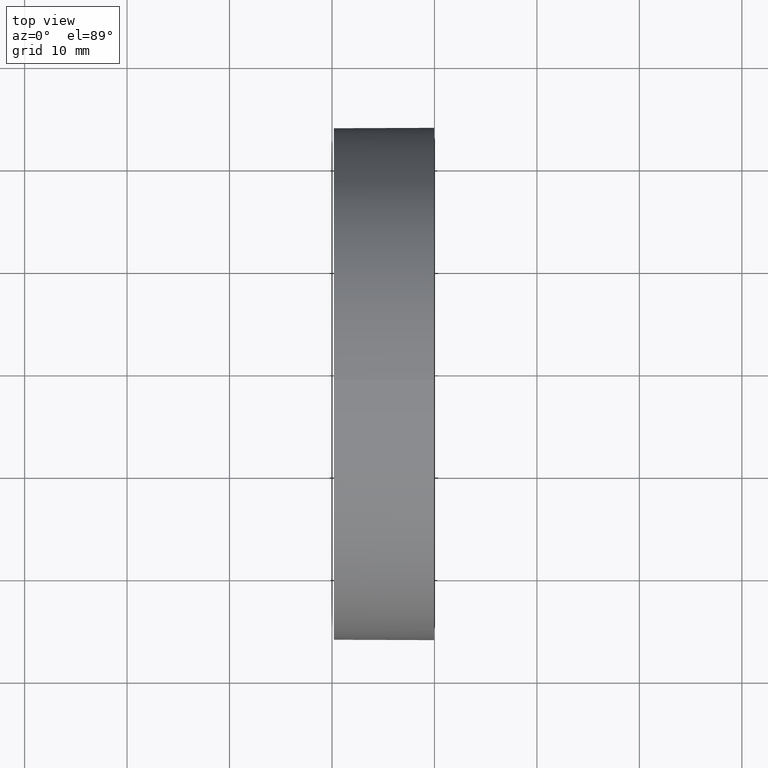
[diagram: clean part render]
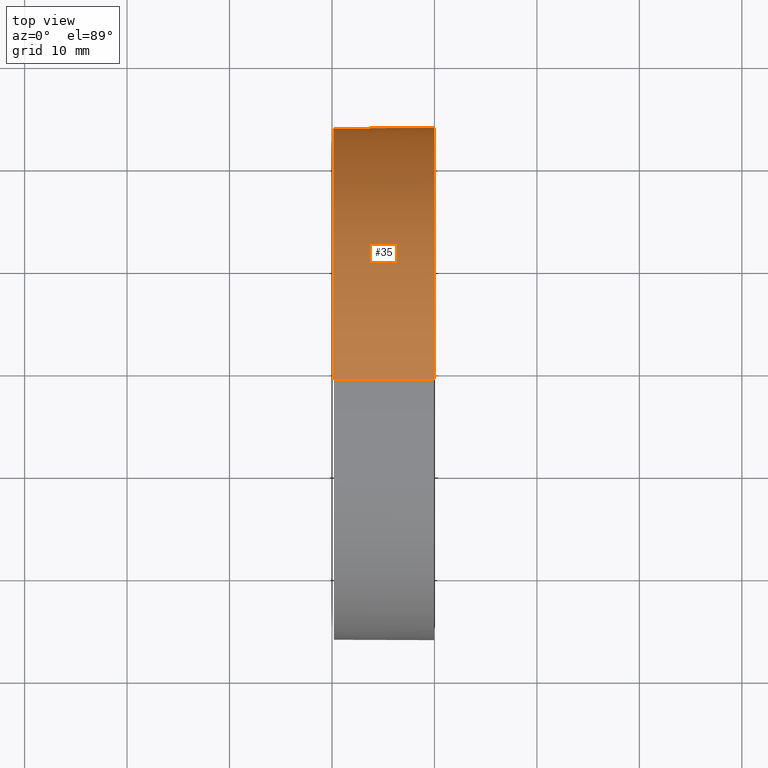
[diagram: same view with one face highlighted and labeled with its STEP entity id]
A machine part, top view. The second image highlights one B-rep face of the part: STEP entity #35.
In plain terms, the highlighted cylindrical surface (partial cylindrical patch) has radius 25 mm, axis along (-1, -0, -0).
Its self-contained STEP definition (entity closure, byte-faithful):
#7 = VECTOR ( 'NONE', #31, 1000.000000000000000 ) ;
#13 = CARTESIAN_POINT ( 'NONE',  ( 217.9702860043302100, 138.7560422467448700, 0.0000000000000000000 ) ) ;
#17 = CARTESIAN_POINT ( 'NONE',  ( 239.9673255001412100, 138.7560422467448700, 24.99999999999999300 ) ) ;
#22 = ORIENTED_EDGE ( 'NONE', *, *, #36, .T. ) ;
#23 = VERTEX_POINT ( 'NONE', #27 ) ;
#26 = VERTEX_POINT ( 'NONE', #63 ) ;
#27 = CARTESIAN_POINT ( 'NONE',  ( 239.9673255001412100, 163.7560422467451200, 0.0000000000000000000 ) ) ;
#31 = DIRECTION ( 'NONE',  ( -1.000000000000000000, -0.0000000000000000000, -0.0000000000000000000 ) ) ;
#34 = CARTESIAN_POINT ( 'NONE',  ( 239.9673255001412100, 138.7560422467448700, 0.0000000000000000000 ) ) ;
#35 = ADVANCED_FACE ( 'NONE', ( #118 ), #78, .T. ) ;
#36 = EDGE_CURVE ( 'NONE', #107, #120, #55, .T. ) ;
#44 = EDGE_LOOP ( 'NONE', ( #161, #22, #181, #48, #53 ) ) ;
#46 = DIRECTION ( 'NONE',  ( -1.000000000000000000, -0.0000000000000000000, -0.0000000000000000000 ) ) ;
#48 = ORIENTED_EDGE ( 'NONE', *, *, #186, .F. ) ;
#53 = ORIENTED_EDGE ( 'NONE', *, *, #171, .T. ) ;
#55 = LINE ( 'NONE', #81, #7 ) ;
#60 = AXIS2_PLACEMENT_3D ( 'NONE', #153, #67, #97 ) ;
#61 = DIRECTION ( 'NONE',  ( 0.0000000000000000000, 0.0000000000000000000, 1.000000000000000000 ) ) ;
#63 = CARTESIAN_POINT ( 'NONE',  ( 230.1853110698390300, 138.7560422467448700, 24.99999999999999300 ) ) ;
#64 = CARTESIAN_POINT ( 'NONE',  ( 230.1853110698390300, 138.7560422467448700, -24.99999999999999300 ) ) ;
#67 = DIRECTION ( 'NONE',  ( -1.000000000000000000, -0.0000000000000000000, -0.0000000000000000000 ) ) ;
#77 = EDGE_CURVE ( 'NONE', #26, #120, #133, .T. ) ;
#78 = CYLINDRICAL_SURFACE ( 'NONE', #147, 24.99999999999999300 ) ;
#81 = CARTESIAN_POINT ( 'NONE',  ( 217.9702860043302100, 138.7560422467448700, -24.99999999999999300 ) ) ;
#82 = DIRECTION ( 'NONE',  ( 0.0000000000000000000, 0.0000000000000000000, 1.000000000000000000 ) ) ;
#88 = VERTEX_POINT ( 'NONE', #17 ) ;
#97 = DIRECTION ( 'NONE',  ( 0.0000000000000000000, 0.0000000000000000000, 1.000000000000000000 ) ) ;
#107 = VERTEX_POINT ( 'NONE', #155 ) ;
#110 = AXIS2_PLACEMENT_3D ( 'NONE', #34, #182, #82 ) ;
#118 = FACE_OUTER_BOUND ( 'NONE', #44, .T. ) ;
#119 = AXIS2_PLACEMENT_3D ( 'NONE', #156, #166, #127 ) ;
#120 = VERTEX_POINT ( 'NONE', #64 ) ;
#121 = EDGE_CURVE ( 'NONE', #23, #107, #136, .T. ) ;
#127 = DIRECTION ( 'NONE',  ( 0.0000000000000000000, 0.0000000000000000000, 1.000000000000000000 ) ) ;
#133 = CIRCLE ( 'NONE', #60, 24.99999999999999300 ) ;
#136 = CIRCLE ( 'NONE', #110, 24.99999999999999300 ) ;
#139 = VECTOR ( 'NONE', #178, 1000.000000000000000 ) ;
#140 = CARTESIAN_POINT ( 'NONE',  ( 217.9702860043302100, 138.7560422467448700, 24.99999999999999300 ) ) ;
#146 = LINE ( 'NONE', #140, #139 ) ;
#147 = AXIS2_PLACEMENT_3D ( 'NONE', #13, #46, #61 ) ;
#149 = CIRCLE ( 'NONE', #119, 24.99999999999999300 ) ;
#153 = CARTESIAN_POINT ( 'NONE',  ( 230.1853110698390300, 138.7560422467448700, 0.0000000000000000000 ) ) ;
#155 = CARTESIAN_POINT ( 'NONE',  ( 239.9673255001412100, 138.7560422467448700, -24.99999999999999300 ) ) ;
#156 = CARTESIAN_POINT ( 'NONE',  ( 239.9673255001412100, 138.7560422467448700, 0.0000000000000000000 ) ) ;
#161 = ORIENTED_EDGE ( 'NONE', *, *, #121, .T. ) ;
#166 = DIRECTION ( 'NONE',  ( -1.000000000000000000, -0.0000000000000000000, -0.0000000000000000000 ) ) ;
#171 = EDGE_CURVE ( 'NONE', #88, #23, #149, .T. ) ;
#178 = DIRECTION ( 'NONE',  ( -1.000000000000000000, -0.0000000000000000000, -0.0000000000000000000 ) ) ;
#181 = ORIENTED_EDGE ( 'NONE', *, *, #77, .F. ) ;
#182 = DIRECTION ( 'NONE',  ( -1.000000000000000000, -0.0000000000000000000, -0.0000000000000000000 ) ) ;
#186 = EDGE_CURVE ( 'NONE', #88, #26, #146, .T. ) ;